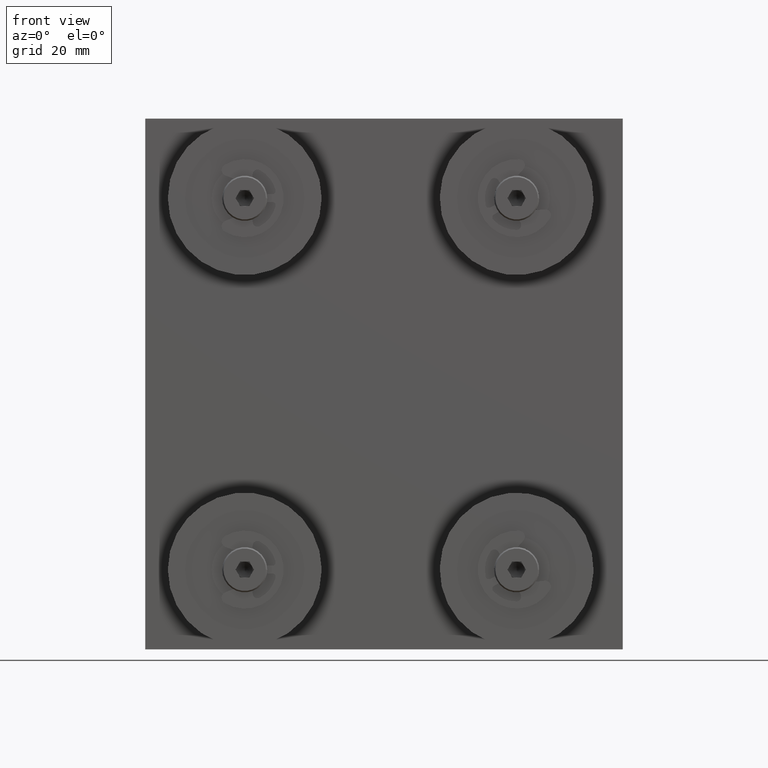
[diagram: clean part render]
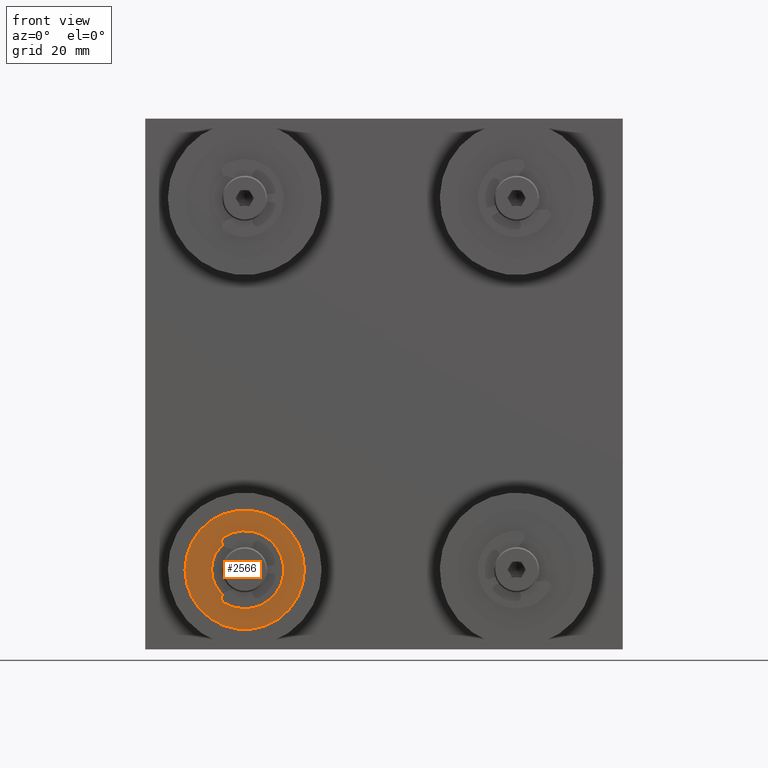
[diagram: same view with one face highlighted and labeled with its STEP entity id]
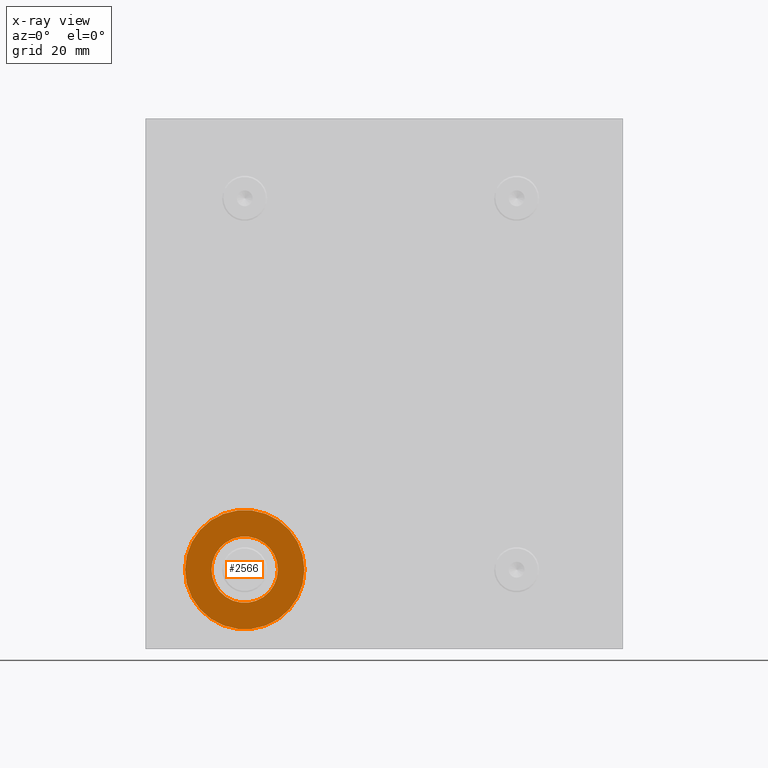
[diagram: x-ray of the same camera — body ghosted, the highlighted face saturated]
A machine part, front view. The second image highlights one B-rep face of the part: STEP entity #2566.
The next image is the same camera in x-ray: the body ghosted, the highlighted face saturated — about 0% of this face is hidden behind the body in this view.
In plain terms, the highlighted planar face has unit normal (0, -1, 0).
Its self-contained STEP definition (entity closure, byte-faithful):
#606=FACE_BOUND('',#907,.T.);
#721=FACE_OUTER_BOUND('',#906,.T.);
#906=EDGE_LOOP('',(#2120));
#907=EDGE_LOOP('',(#2121));
#1051=CIRCLE('',#3017,12.5);
#1052=CIRCLE('',#3019,22.5);
#1246=VERTEX_POINT('',#4464);
#1247=VERTEX_POINT('',#4468);
#1548=EDGE_CURVE('',#1246,#1246,#1051,.T.);
#1550=EDGE_CURVE('',#1247,#1247,#1052,.T.);
#2120=ORIENTED_EDGE('',*,*,#1550,.F.);
#2121=ORIENTED_EDGE('',*,*,#1548,.T.);
#2437=PLANE('',#3018);
#2566=ADVANCED_FACE('',(#721,#606),#2437,.T.);
#3017=AXIS2_PLACEMENT_3D('',#4465,#3675,#3676);
#3018=AXIS2_PLACEMENT_3D('',#4467,#3678,#3679);
#3019=AXIS2_PLACEMENT_3D('',#4469,#3680,#3681);
#3675=DIRECTION('center_axis',(1.,0.,0.));
#3676=DIRECTION('ref_axis',(0.,1.,0.));
#3678=DIRECTION('center_axis',(-1.,0.,0.));
#3679=DIRECTION('ref_axis',(0.,0.,1.));
#3680=DIRECTION('center_axis',(1.,0.,0.));
#3681=DIRECTION('ref_axis',(0.,1.,0.));
#4464=CARTESIAN_POINT('',(-12.,-12.5,-1.53080849893419E-15));
#4465=CARTESIAN_POINT('Origin',(-12.,0.,0.));
#4467=CARTESIAN_POINT('Origin',(-12.,17.5,0.));
#4468=CARTESIAN_POINT('',(-12.,-22.5,-2.75545529808154E-15));
#4469=CARTESIAN_POINT('Origin',(-12.,0.,0.));